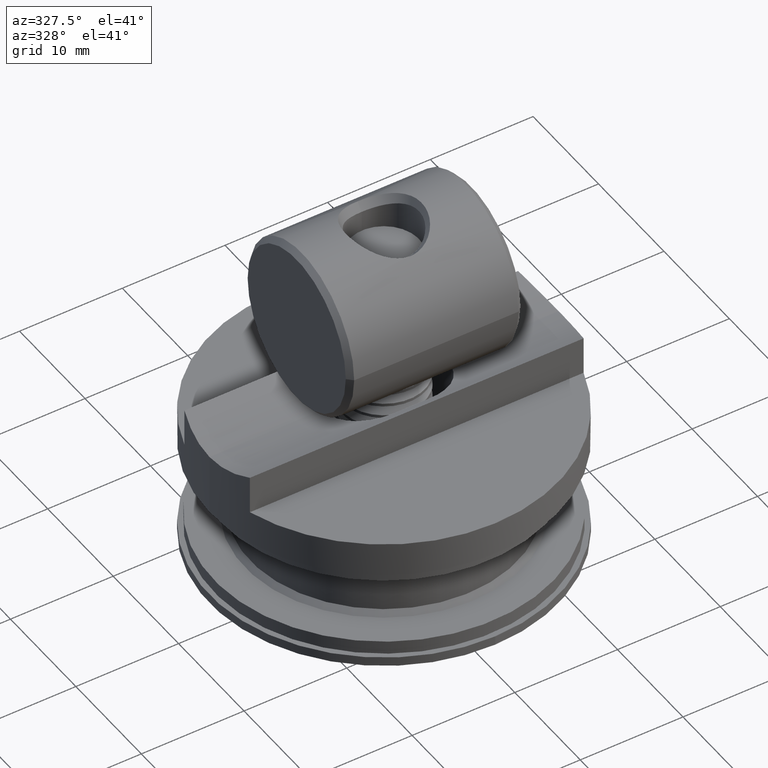
[diagram: clean part render]
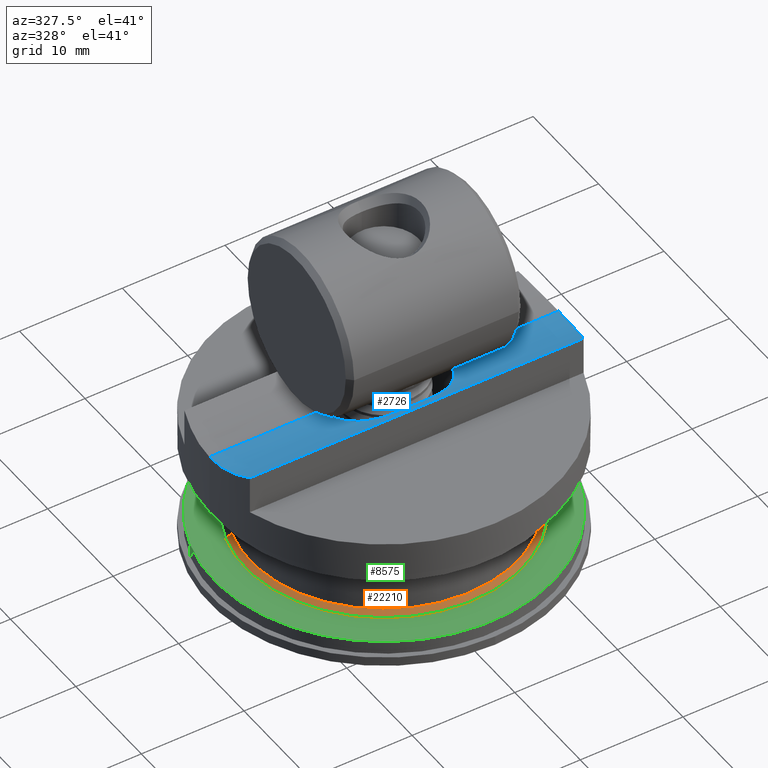
[diagram: same view with three faces highlighted in distinct colors, each labeled with its STEP entity id]
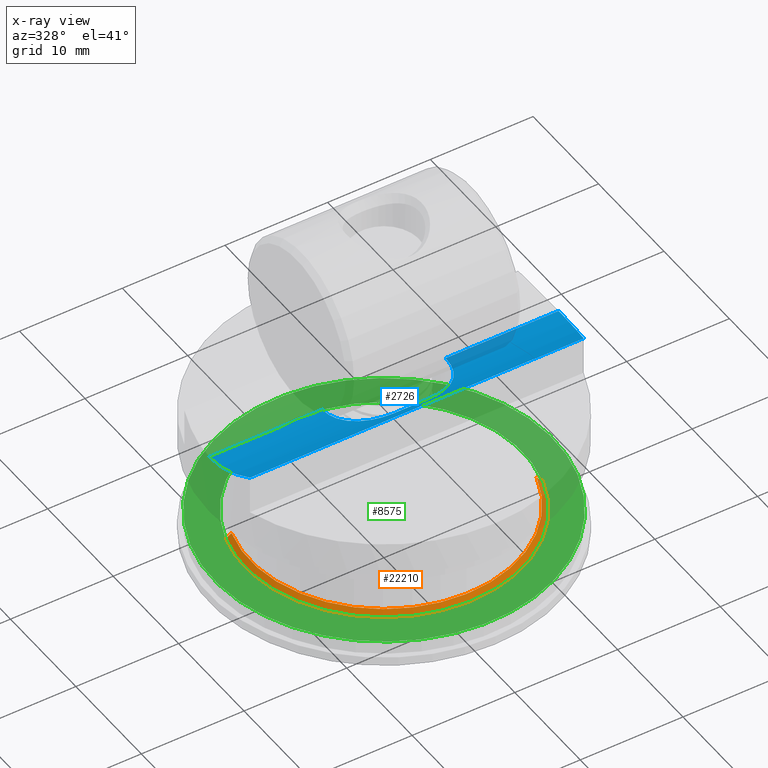
[diagram: x-ray of the same camera — body ghosted, the three highlighted faces saturated]
A machine part, auxiliary view with three faces highlighted in distinct colors.
The next image is the same camera in x-ray (body ghosted, the three faces saturated) — at least one of them is partly hidden behind the body in this view.
Their STEP definitions:

[orange] entity #22210 — the highlighted conical surface has half-angle 45 deg.
#325 = AXIS2_PLACEMENT_3D ( 'NONE', #10648, #7199, #343 ) ;
#343 = DIRECTION ( 'NONE',  ( -1.000000000000000000, 0.0000000000000000000, 0.0000000000000000000 ) ) ;
#347 = DIRECTION ( 'NONE',  ( 0.7071067811865534600, 8.659560562354968600E-017, -0.7071067811865416900 ) ) ;
#485 = ORIENTED_EDGE ( 'NONE', *, *, #21501, .F. ) ;
#2004 = ORIENTED_EDGE ( 'NONE', *, *, #17970, .F. ) ;
#2071 = CARTESIAN_POINT ( 'NONE',  ( 13.00000000000000000, 1.592040838891552400E-015, 1.799999999999989200 ) ) ;
#4553 = LINE ( 'NONE', #16442, #15898 ) ;
#6537 = CIRCLE ( 'NONE', #13711, 13.50000000000003700 ) ;
#6622 = VECTOR ( 'NONE', #347, 1000.000000000000000 ) ;
#7199 = DIRECTION ( 'NONE',  ( 0.0000000000000000000, 0.0000000000000000000, -1.000000000000000000 ) ) ;
#7432 = VERTEX_POINT ( 'NONE', #22131 ) ;
#7946 = ORIENTED_EDGE ( 'NONE', *, *, #9624, .F. ) ;
#9279 = DIRECTION ( 'NONE',  ( 0.0000000000000000000, 0.0000000000000000000, 1.000000000000000000 ) ) ;
#9548 = CARTESIAN_POINT ( 'NONE',  ( 0.0000000000000000000, 0.0000000000000000000, 1.299999999999983400 ) ) ;
#9624 = EDGE_CURVE ( 'NONE', #7432, #21302, #19576, .T. ) ;
#9684 = DIRECTION ( 'NONE',  ( -0.0000000000000000000, -0.0000000000000000000, -1.000000000000000000 ) ) ;
#10043 = EDGE_CURVE ( 'NONE', #7432, #13839, #4553, .T. ) ;
#10648 = CARTESIAN_POINT ( 'NONE',  ( 0.0000000000000000000, 0.0000000000000000000, 1.299999999999983400 ) ) ;
#11431 = DIRECTION ( 'NONE',  ( 1.000000000000000000, 0.0000000000000000000, 0.0000000000000000000 ) ) ;
#11625 = ORIENTED_EDGE ( 'NONE', *, *, #10043, .T. ) ;
#12438 = DIRECTION ( 'NONE',  ( 1.000000000000000000, 0.0000000000000000000, 0.0000000000000000000 ) ) ;
#13711 = AXIS2_PLACEMENT_3D ( 'NONE', #9548, #9684, #11431 ) ;
#13839 = VERTEX_POINT ( 'NONE', #21146 ) ;
#13953 = VERTEX_POINT ( 'NONE', #20996 ) ;
#14074 = AXIS2_PLACEMENT_3D ( 'NONE', #21121, #9279, #12438 ) ;
#14885 = CONICAL_SURFACE ( 'NONE', #325, 13.50000000000003700, 0.7853981633974533900 ) ;
#15898 = VECTOR ( 'NONE', #16145, 1000.000000000000000 ) ;
#16145 = DIRECTION ( 'NONE',  ( -0.7071067811865534600, 0.0000000000000000000, -0.7071067811865416900 ) ) ;
#16442 = CARTESIAN_POINT ( 'NONE',  ( -13.50000000000003700, 0.0000000000000000000, 1.299999999999983400 ) ) ;
#17568 = FACE_OUTER_BOUND ( 'NONE', #21879, .T. ) ;
#17970 = EDGE_CURVE ( 'NONE', #21302, #13953, #20917, .T. ) ;
#19383 = CARTESIAN_POINT ( 'NONE',  ( 13.50000000000003700, 1.653273178848924500E-015, 1.299999999999983400 ) ) ;
#19576 = CIRCLE ( 'NONE', #14074, 13.00000000000002500 ) ;
#20917 = LINE ( 'NONE', #19383, #6622 ) ;
#20996 = CARTESIAN_POINT ( 'NONE',  ( 13.50000000000003700, 1.653273178848924500E-015, 1.299999999999983400 ) ) ;
#21121 = CARTESIAN_POINT ( 'NONE',  ( 0.0000000000000000000, 0.0000000000000000000, 1.799999999999989200 ) ) ;
#21146 = CARTESIAN_POINT ( 'NONE',  ( -13.50000000000003700, 0.0000000000000000000, 1.299999999999983400 ) ) ;
#21302 = VERTEX_POINT ( 'NONE', #2071 ) ;
#21501 = EDGE_CURVE ( 'NONE', #13953, #13839, #6537, .T. ) ;
#21879 = EDGE_LOOP ( 'NONE', ( #2004, #7946, #11625, #485 ) ) ;
#22131 = CARTESIAN_POINT ( 'NONE',  ( -13.00000000000000000, 0.0000000000000000000, 1.799999999999989200 ) ) ;
#22210 = ADVANCED_FACE ( 'NONE', ( #17568 ), #14885, .T. ) ;

[blue] entity #2726 — the highlighted cylindrical surface (partial cylindrical patch) has radius 12.5 mm, axis along (1, 0, 0).
#226 = CARTESIAN_POINT ( 'NONE',  ( -16.24807680927192200, -5.000000000000000000, 7.043560762610401800 ) ) ;
#480 = ORIENTED_EDGE ( 'NONE', *, *, #15894, .F. ) ;
#596 = CARTESIAN_POINT ( 'NONE',  ( -4.950831965831176800, -2.809420263903716500, 6.318155209937890100 ) ) ;
#674 = CARTESIAN_POINT ( 'NONE',  ( -5.780137393318618400, -1.377347052100071700, 6.073442355274935700 ) ) ;
#683 = LINE ( 'NONE', #20193, #6579 ) ;
#751 = CARTESIAN_POINT ( 'NONE',  ( 2.864800850060624300, -4.110753554315703400, 6.695121413153120900 ) ) ;
#822 = CARTESIAN_POINT ( 'NONE',  ( 5.781083021083731000, -1.375231266627196600, 6.073145695135390400 ) ) ;
#1011 = CARTESIAN_POINT ( 'NONE',  ( -17.00000000000000000, -5.000000000000000000, 7.043560762610400900 ) ) ;
#1020 = EDGE_LOOP ( 'NONE', ( #480, #11827, #17640, #16980, #16606, #19097, #19368, #9713 ) ) ;
#1622 = VERTEX_POINT ( 'NONE', #17269 ) ;
#2053 = VERTEX_POINT ( 'NONE', #17080 ) ;
#2248 = VERTEX_POINT ( 'NONE', #2622 ) ;
#2366 = AXIS2_PLACEMENT_3D ( 'NONE', #21409, #2654, #10934 ) ;
#2381 = EDGE_CURVE ( 'NONE', #2248, #16859, #17397, .T. ) ;
#2410 = CARTESIAN_POINT ( 'NONE',  ( -5.972647517807253300, -0.5571047092475709400, 6.009380514469486700 ) ) ;
#2483 = CARTESIAN_POINT ( 'NONE',  ( 5.862100455995128600, -1.109399948892098300, 6.046317810794321600 ) ) ;
#2522 = VECTOR ( 'NONE', #8547, 1000.000000000000000 ) ;
#2555 = CARTESIAN_POINT ( 'NONE',  ( 6.000000000000000000, 9.963313232941379100E-025, 6.000000000000001800 ) ) ;
#2622 = CARTESIAN_POINT ( 'NONE',  ( 6.000000000000000000, 9.963313232941379100E-025, 6.000000000000001800 ) ) ;
#2654 = DIRECTION ( 'NONE',  ( 1.000000000000000000, -0.0000000000000000000, -0.0000000000000000000 ) ) ;
#2726 = ADVANCED_FACE ( 'NONE', ( #16318 ), #18157, .F. ) ;
#2976 = CARTESIAN_POINT ( 'NONE',  ( -17.00000000000000000, 0.0000000000000000000, 6.000000000000001800 ) ) ;
#3388 = B_SPLINE_CURVE_WITH_KNOTS ( 'NONE', 3,
 ( #14298, #7519, #16024, #5704, #9160, #21232, #14522, #10905, #4195, #596, #10979, #5780, #4121, #674, #12692, #2410, #12910, #16325 ),
 .UNSPECIFIED., .F., .F.,
 ( 4, 2, 2, 2, 2, 2, 2, 2, 4 ),
 ( 8.673617379884035500E-019, 0.0008369732241461585300, 0.001673946448292316200, 0.002510919672438473700, 0.003347892896584633200, 0.004184866120730792300, 0.005021839344876950900, 0.005858812569023110400, 0.006695785793169270000 ),
 .UNSPECIFIED. ) ;
#3658 = CARTESIAN_POINT ( 'NONE',  ( 17.00000000000000000, 2.081899558550500300E-015, 6.000000000000001800 ) ) ;
#3879 = CARTESIAN_POINT ( 'NONE',  ( 16.73973635642414600, -2.993511162628451400, 6.356177170611990900 ) ) ;
#4121 = CARTESIAN_POINT ( 'NONE',  ( -5.567479077185984300, -1.888371204557246500, 6.140773729986060300 ) ) ;
#4195 = CARTESIAN_POINT ( 'NONE',  ( -4.561968954627945800, -3.198593142449993800, 6.414505114912834000 ) ) ;
#4537 = CARTESIAN_POINT ( 'NONE',  ( -1.749999999999999800, -4.250000000000000000, 6.744682054491253400 ) ) ;
#4748 = DIRECTION ( 'NONE',  ( -1.000000000000000000, 0.0000000000000000000, 0.0000000000000000000 ) ) ;
#4883 = EDGE_CURVE ( 'NONE', #17113, #19551, #6275, .T. ) ;
#5369 = CARTESIAN_POINT ( 'NONE',  ( 17.00000000000000000, -0.8782767112259756100, 6.000000000000002700 ) ) ;
#5674 = CARTESIAN_POINT ( 'NONE',  ( 16.93240979253071600, -1.735807613558464400, 6.091489215135516700 ) ) ;
#5704 = CARTESIAN_POINT ( 'NONE',  ( -2.857367952987591100, -4.112639565472700400, 6.695782171233106300 ) ) ;
#5780 = CARTESIAN_POINT ( 'NONE',  ( -5.436986573745868700, -2.132299137128315100, 6.180941347253829900 ) ) ;
#5858 = CARTESIAN_POINT ( 'NONE',  ( 4.346780514102999100, -3.375703772204450700, 6.463376612677884700 ) ) ;
#5925 = CARTESIAN_POINT ( 'NONE',  ( 6.000000000000004400, -0.2793660271512373700, 6.000000000000000900 ) ) ;
#6275 = B_SPLINE_CURVE_WITH_KNOTS ( 'NONE', 3,
 ( #226, #14004, #8876, #15511, #20938, #10608, #20705, #20778 ),
 .UNSPECIFIED., .F., .F.,
 ( 4, 2, 2, 4 ),
 ( 0.002693431256767680100, 0.003993720552300658400, 0.005294009847833637200, 0.007894588438899593000 ),
 .UNSPECIFIED. ) ;
#6405 = B_SPLINE_CURVE_WITH_KNOTS ( 'NONE', 3,
 ( #2555, #5925, #7451, #2483, #822, #17737, #7370, #17965, #19639, #9314, #5858, #12775, #7663, #9388, #751, #14450, #16249, #12620 ),
 .UNSPECIFIED., .F., .F.,
 ( 4, 2, 2, 2, 2, 2, 2, 2, 4 ),
 ( 0.006695785793169265600, 0.007531617047070050100, 0.008367448300970832900, 0.009203279554871615600, 0.01003911080877240000, 0.01087494206267318300, 0.01171077331657396600, 0.01254660457047474700, 0.01338243582437552800 ),
 .UNSPECIFIED. ) ;
#6579 = VECTOR ( 'NONE', #4748, 1000.000000000000000 ) ;
#6908 = DIRECTION ( 'NONE',  ( -1.000000000000000000, 0.0000000000000000000, 0.0000000000000000000 ) ) ;
#7084 = VECTOR ( 'NONE', #6908, 1000.000000000000000 ) ;
#7370 = CARTESIAN_POINT ( 'NONE',  ( 5.434001243650852700, -2.136952230541613300, 6.181810911774474200 ) ) ;
#7451 = CARTESIAN_POINT ( 'NONE',  ( 5.971746927899948400, -0.5630197896739134200, 6.009684670402588600 ) ) ;
#7519 = CARTESIAN_POINT ( 'NONE',  ( -2.033189200034065000, -4.249999999999999100, 6.744682054491253400 ) ) ;
#7663 = CARTESIAN_POINT ( 'NONE',  ( 3.640323067358048400, -3.816505879139211000, 6.596351509877499600 ) ) ;
#7769 = CARTESIAN_POINT ( 'NONE',  ( -16.24807680927192200, -5.000000000000000000, 7.043560762610401800 ) ) ;
#8021 = CARTESIAN_POINT ( 'NONE',  ( -17.00000000000000000, 0.0000000000000000000, 6.000000000000001800 ) ) ;
#8332 = CARTESIAN_POINT ( 'NONE',  ( -17.00000000000000000, 0.0000000000000000000, 6.000000000000001800 ) ) ;
#8547 = DIRECTION ( 'NONE',  ( 1.000000000000000000, -0.0000000000000000000, -0.0000000000000000000 ) ) ;
#8552 = EDGE_CURVE ( 'NONE', #2248, #1622, #6405, .T. ) ;
#8584 = EDGE_CURVE ( 'NONE', #14454, #2053, #3388, .T. ) ;
#8876 = CARTESIAN_POINT ( 'NONE',  ( -16.47324074220452400, -4.219887030868600100, 6.726049583952462100 ) ) ;
#9160 = CARTESIAN_POINT ( 'NONE',  ( -3.128450076441039700, -4.029864024250787900, 6.666872280972202500 ) ) ;
#9314 = CARTESIAN_POINT ( 'NONE',  ( 4.558902062768008400, -3.201385724007833800, 6.415232843061277300 ) ) ;
#9388 = CARTESIAN_POINT ( 'NONE',  ( 3.129592498188787700, -4.029362600143022300, 6.666707916286845200 ) ) ;
#9496 = LINE ( 'NONE', #1011, #7084 ) ;
#9713 = ORIENTED_EDGE ( 'NONE', *, *, #8584, .T. ) ;
#10608 = CARTESIAN_POINT ( 'NONE',  ( -16.93220236234998300, -1.736782113223523900, 6.091775799249709200 ) ) ;
#10905 = CARTESIAN_POINT ( 'NONE',  ( -4.345835073313201800, -3.376526203623707400, 6.463600021049963100 ) ) ;
#10934 = DIRECTION ( 'NONE',  ( 0.0000000000000000000, 0.0000000000000000000, -1.000000000000000000 ) ) ;
#10979 = CARTESIAN_POINT ( 'NONE',  ( -5.126089471887978800, -2.596649665046789400, 6.270391820789562600 ) ) ;
#11192 = EDGE_CURVE ( 'NONE', #16859, #12647, #13861, .T. ) ;
#11827 = ORIENTED_EDGE ( 'NONE', *, *, #4883, .F. ) ;
#12620 = CARTESIAN_POINT ( 'NONE',  ( 1.749999999999999800, -4.250000000000000000, 6.744682054491253400 ) ) ;
#12647 = VERTEX_POINT ( 'NONE', #18064 ) ;
#12692 = CARTESIAN_POINT ( 'NONE',  ( -5.862858319613303900, -1.107029430276009500, 6.046067824583149200 ) ) ;
#12775 = CARTESIAN_POINT ( 'NONE',  ( 3.888463315680532600, -3.683153491722687400, 6.553868455340197100 ) ) ;
#12800 = VECTOR ( 'NONE', #20067, 1000.000000000000000 ) ;
#12910 = CARTESIAN_POINT ( 'NONE',  ( -6.000000000000004400, -0.2797477162650240900, 6.000000000000001800 ) ) ;
#13362 = EDGE_CURVE ( 'NONE', #1622, #14454, #683, .T. ) ;
#13547 = LINE ( 'NONE', #8332, #2522 ) ;
#13861 = B_SPLINE_CURVE_WITH_KNOTS ( 'NONE', 3,
 ( #3658, #5369, #5674, #3879, #21207, #21125, #15925, #20972 ),
 .UNSPECIFIED., .F., .F.,
 ( 4, 2, 2, 4 ),
 ( 0.007894588438899591300, 0.01049073983045482000, 0.01178881552623243400, 0.01308689122201004900 ),
 .UNSPECIFIED. ) ;
#14004 = CARTESIAN_POINT ( 'NONE',  ( -16.36594905545406000, -4.616960538070260100, 6.876388636091529200 ) ) ;
#14298 = CARTESIAN_POINT ( 'NONE',  ( -1.749999999999999800, -4.250000000000000000, 6.744682054491253400 ) ) ;
#14450 = CARTESIAN_POINT ( 'NONE',  ( 2.315233441570595700, -4.221562136951832600, 6.734292781206483400 ) ) ;
#14454 = VERTEX_POINT ( 'NONE', #4537 ) ;
#14522 = CARTESIAN_POINT ( 'NONE',  ( -3.885409199586100200, -3.685012412723129000, 6.554434413762470200 ) ) ;
#15511 = CARTESIAN_POINT ( 'NONE',  ( -16.66091106142850400, -3.404284022682210400, 6.464876184860015600 ) ) ;
#15788 = EDGE_CURVE ( 'NONE', #12647, #17113, #9496, .T. ) ;
#15894 = EDGE_CURVE ( 'NONE', #19551, #2053, #13547, .T. ) ;
#15925 = CARTESIAN_POINT ( 'NONE',  ( 16.36571680633845500, -4.617715258364116300, 6.876718023032014800 ) ) ;
#16024 = CARTESIAN_POINT ( 'NONE',  ( -2.311184876689469400, -4.221982888758604200, 6.734447601939839600 ) ) ;
#16249 = CARTESIAN_POINT ( 'NONE',  ( 2.032836002845213900, -4.250000000000000000, 6.744682054491253400 ) ) ;
#16318 = FACE_OUTER_BOUND ( 'NONE', #1020, .T. ) ;
#16325 = CARTESIAN_POINT ( 'NONE',  ( -6.000000000000000000, 1.316479456649601000E-016, 6.000000000000000900 ) ) ;
#16606 = ORIENTED_EDGE ( 'NONE', *, *, #2381, .F. ) ;
#16859 = VERTEX_POINT ( 'NONE', #16938 ) ;
#16938 = CARTESIAN_POINT ( 'NONE',  ( 17.00000000000000000, 2.081899558550500300E-015, 6.000000000000001800 ) ) ;
#16980 = ORIENTED_EDGE ( 'NONE', *, *, #11192, .F. ) ;
#17080 = CARTESIAN_POINT ( 'NONE',  ( -6.000000000000000000, 1.316479456649601000E-016, 6.000000000000000900 ) ) ;
#17113 = VERTEX_POINT ( 'NONE', #7769 ) ;
#17269 = CARTESIAN_POINT ( 'NONE',  ( 1.749999999999999800, -4.250000000000000000, 6.744682054491253400 ) ) ;
#17397 = LINE ( 'NONE', #8021, #12800 ) ;
#17640 = ORIENTED_EDGE ( 'NONE', *, *, #15788, .F. ) ;
#17737 = CARTESIAN_POINT ( 'NONE',  ( 5.565830411449368900, -1.892175898439869300, 6.141292975379489100 ) ) ;
#17965 = CARTESIAN_POINT ( 'NONE',  ( 5.127213892080305900, -2.594774812190378600, 6.270057607538883600 ) ) ;
#18064 = CARTESIAN_POINT ( 'NONE',  ( 16.24807680927191500, -5.000000000000004400, 7.043560762610400900 ) ) ;
#18157 = CYLINDRICAL_SURFACE ( 'NONE', #2366, 12.50000000000000000 ) ;
#19097 = ORIENTED_EDGE ( 'NONE', *, *, #8552, .T. ) ;
#19368 = ORIENTED_EDGE ( 'NONE', *, *, #13362, .T. ) ;
#19551 = VERTEX_POINT ( 'NONE', #2976 ) ;
#19639 = CARTESIAN_POINT ( 'NONE',  ( 4.949665577144245700, -2.810861353133898200, 6.318476029463132800 ) ) ;
#20067 = DIRECTION ( 'NONE',  ( 1.000000000000000000, -0.0000000000000000000, -0.0000000000000000000 ) ) ;
#20193 = CARTESIAN_POINT ( 'NONE',  ( -17.00000000000000000, -4.250000000000000000, 6.744682054491253400 ) ) ;
#20705 = CARTESIAN_POINT ( 'NONE',  ( -17.00000000000000400, -0.8797744305958377100, 6.000000000000004400 ) ) ;
#20778 = CARTESIAN_POINT ( 'NONE',  ( -17.00000000000000000, 0.0000000000000000000, 6.000000000000001800 ) ) ;
#20938 = CARTESIAN_POINT ( 'NONE',  ( -16.74010212173279300, -2.991312954381908400, 6.355673884888813200 ) ) ;
#20972 = CARTESIAN_POINT ( 'NONE',  ( 16.24807680927191500, -5.000000000000004400, 7.043560762610400900 ) ) ;
#21125 = CARTESIAN_POINT ( 'NONE',  ( 16.47223833406488300, -4.223703744712738100, 6.727452752839338000 ) ) ;
#21207 = CARTESIAN_POINT ( 'NONE',  ( 16.65971500504962700, -3.410015397012335900, 6.466532627630998700 ) ) ;
#21232 = CARTESIAN_POINT ( 'NONE',  ( -3.642124313653868600, -3.815729844848945200, 6.596096378922425200 ) ) ;
#21409 = CARTESIAN_POINT ( 'NONE',  ( -17.00000000000000000, 0.0000000000000000000, 18.50000000000000400 ) ) ;

[green] entity #8575 — the highlighted planar face has unit normal (0, 0, 1).
#1257 = ORIENTED_EDGE ( 'NONE', *, *, #18977, .F. ) ;
#2266 = DIRECTION ( 'NONE',  ( 0.0000000000000000000, 0.0000000000000000000, -1.000000000000000000 ) ) ;
#2438 = DIRECTION ( 'NONE',  ( 0.0000000000000000000, 0.0000000000000000000, -1.000000000000000000 ) ) ;
#3785 = EDGE_LOOP ( 'NONE', ( #9269, #7813 ) ) ;
#4346 = CARTESIAN_POINT ( 'NONE',  ( 16.50000000000000000, 2.020667218593124000E-015, 1.299999999999983400 ) ) ;
#6537 = CIRCLE ( 'NONE', #13711, 13.50000000000003700 ) ;
#6897 = DIRECTION ( 'NONE',  ( -0.0000000000000000000, -0.0000000000000000000, -1.000000000000000000 ) ) ;
#7813 = ORIENTED_EDGE ( 'NONE', *, *, #21501, .T. ) ;
#8414 = ORIENTED_EDGE ( 'NONE', *, *, #13528, .F. ) ;
#8575 = ADVANCED_FACE ( 'NONE', ( #13384, #9871 ), #19715, .T. ) ;
#9269 = ORIENTED_EDGE ( 'NONE', *, *, #16085, .T. ) ;
#9479 = DIRECTION ( 'NONE',  ( -1.000000000000000000, 0.0000000000000000000, 0.0000000000000000000 ) ) ;
#9548 = CARTESIAN_POINT ( 'NONE',  ( 0.0000000000000000000, 0.0000000000000000000, 1.299999999999983400 ) ) ;
#9684 = DIRECTION ( 'NONE',  ( -0.0000000000000000000, -0.0000000000000000000, -1.000000000000000000 ) ) ;
#9871 = FACE_OUTER_BOUND ( 'NONE', #21348, .T. ) ;
#10291 = AXIS2_PLACEMENT_3D ( 'NONE', #17815, #15953, #17891 ) ;
#11431 = DIRECTION ( 'NONE',  ( 1.000000000000000000, 0.0000000000000000000, 0.0000000000000000000 ) ) ;
#11463 = CIRCLE ( 'NONE', #11816, 16.50000000000003600 ) ;
#11816 = AXIS2_PLACEMENT_3D ( 'NONE', #19815, #2438, #9479 ) ;
#11974 = CIRCLE ( 'NONE', #14512, 16.50000000000003600 ) ;
#12223 = DIRECTION ( 'NONE',  ( 1.000000000000000000, 0.0000000000000000000, 0.0000000000000000000 ) ) ;
#12722 = CARTESIAN_POINT ( 'NONE',  ( -16.50000000000003600, 0.0000000000000000000, 1.299999999999983400 ) ) ;
#12728 = VERTEX_POINT ( 'NONE', #12722 ) ;
#13384 = FACE_BOUND ( 'NONE', #3785, .T. ) ;
#13528 = EDGE_CURVE ( 'NONE', #20541, #12728, #11974, .T. ) ;
#13711 = AXIS2_PLACEMENT_3D ( 'NONE', #9548, #9684, #11431 ) ;
#13839 = VERTEX_POINT ( 'NONE', #21146 ) ;
#13953 = VERTEX_POINT ( 'NONE', #20996 ) ;
#14512 = AXIS2_PLACEMENT_3D ( 'NONE', #19272, #2266, #21087 ) ;
#15552 = AXIS2_PLACEMENT_3D ( 'NONE', #15703, #6897, #12223 ) ;
#15703 = CARTESIAN_POINT ( 'NONE',  ( 0.0000000000000000000, 0.0000000000000000000, 1.299999999999983400 ) ) ;
#15953 = DIRECTION ( 'NONE',  ( 0.0000000000000000000, 0.0000000000000000000, 1.000000000000000000 ) ) ;
#16085 = EDGE_CURVE ( 'NONE', #13839, #13953, #21097, .T. ) ;
#17815 = CARTESIAN_POINT ( 'NONE',  ( -8.673617379884035500E-016, 13.00000000000003200, 1.299999999999983400 ) ) ;
#17891 = DIRECTION ( 'NONE',  ( 1.000000000000000000, 0.0000000000000000000, 0.0000000000000000000 ) ) ;
#18977 = EDGE_CURVE ( 'NONE', #12728, #20541, #11463, .T. ) ;
#19272 = CARTESIAN_POINT ( 'NONE',  ( 0.0000000000000000000, 0.0000000000000000000, 1.299999999999983400 ) ) ;
#19715 = PLANE ( 'NONE',  #10291 ) ;
#19815 = CARTESIAN_POINT ( 'NONE',  ( 0.0000000000000000000, 0.0000000000000000000, 1.299999999999983400 ) ) ;
#20541 = VERTEX_POINT ( 'NONE', #4346 ) ;
#20996 = CARTESIAN_POINT ( 'NONE',  ( 13.50000000000003700, 1.653273178848924500E-015, 1.299999999999983400 ) ) ;
#21087 = DIRECTION ( 'NONE',  ( -1.000000000000000000, 0.0000000000000000000, 0.0000000000000000000 ) ) ;
#21097 = CIRCLE ( 'NONE', #15552, 13.50000000000003700 ) ;
#21146 = CARTESIAN_POINT ( 'NONE',  ( -13.50000000000003700, 0.0000000000000000000, 1.299999999999983400 ) ) ;
#21348 = EDGE_LOOP ( 'NONE', ( #1257, #8414 ) ) ;
#21501 = EDGE_CURVE ( 'NONE', #13953, #13839, #6537, .T. ) ;